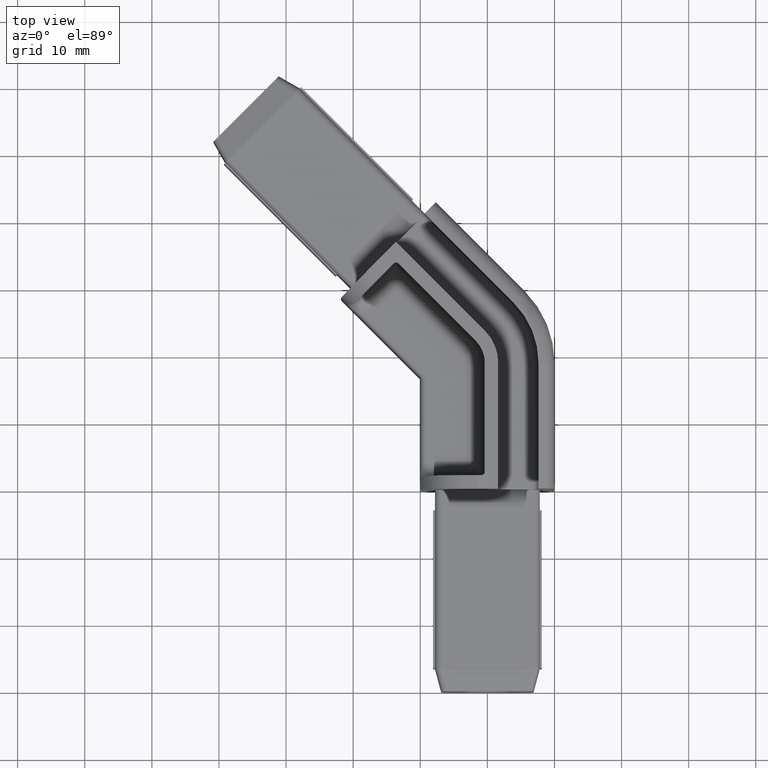
[diagram: clean part render]
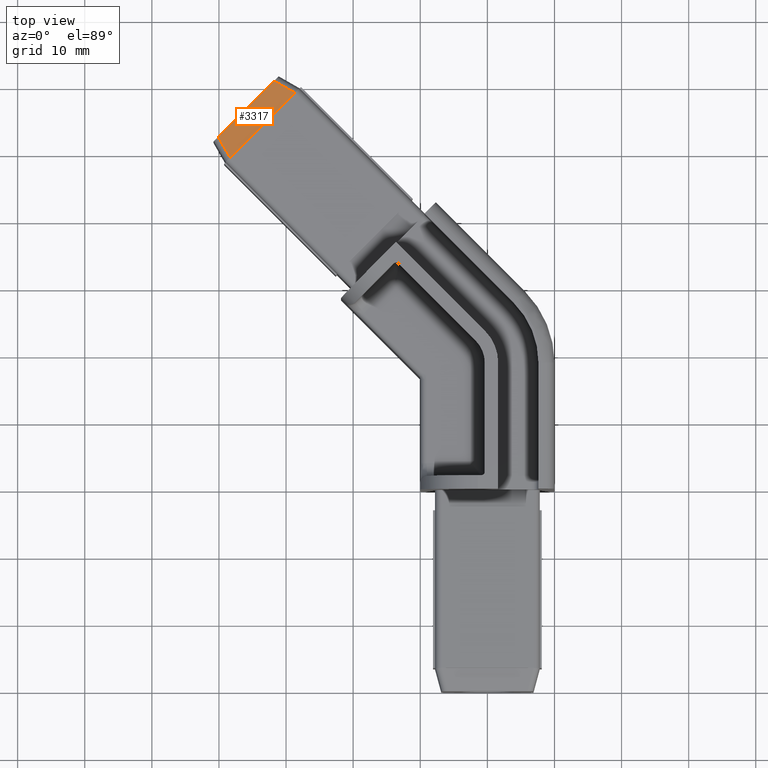
[diagram: same view with one face highlighted and labeled with its STEP entity id]
A machine part, top view. The second image highlights one B-rep face of the part: STEP entity #3317.
In plain terms, the highlighted face is a freeform B-spline surface patch.
Its self-contained STEP definition (entity closure, byte-faithful):
#927=CARTESIAN_POINT('',(-29.183738963412907,88.652577317620640,7.800000000000249));
#928=VERTEX_POINT('',#927);
#937=CARTESIAN_POINT('',(-37.810441737096198,80.025874630353556,7.800000000000249));
#938=VERTEX_POINT('',#937);
#939=CARTESIAN_POINT('',(-29.183739076026058,88.652577430233791,7.800000000000249));
#940=DIRECTION('',(-0.707106781186530,-0.707106781186565,-7.280151E-017));
#941=VECTOR('',#940,12.199999999999021);
#942=LINE('',#939,#941);
#943=EDGE_CURVE('',#928,#938,#942,.T.);
#2683=CARTESIAN_POINT('',(-40.125281275743646,82.618492087083112,6.879999983310947));
#2684=VERTEX_POINT('',#2683);
#2692=CARTESIAN_POINT('',(-31.776356463351021,90.967416899476135,6.879999983310949));
#2693=VERTEX_POINT('',#2692);
#2694=CARTESIAN_POINT('',(-31.776356463351007,90.967416899476135,6.879999983310949));
#2695=DIRECTION('',(-0.707106781186526,-0.707106781186569,-7.522370E-017));
#2696=VECTOR('',#2695,11.807162700919180);
#2697=LINE('',#2694,#2696);
#2698=EDGE_CURVE('',#2693,#2684,#2697,.T.);
#3011=CARTESIAN_POINT('',(-38.330080857971097,79.509113753731910,7.799460442112372));
#3012=VERTEX_POINT('',#3011);
#3023=CARTESIAN_POINT('',(-38.330080857971225,79.509113753731796,7.799460442112413));
#3024=CARTESIAN_POINT('',(-38.504195454758332,79.810689081706656,7.710282941115267));
#3025=CARTESIAN_POINT('',(-39.102595594015426,80.847148526157085,7.403796121514778));
#3026=CARTESIAN_POINT('',(-39.700995733273430,81.883607970607542,7.097309301914275));
#3027=CARTESIAN_POINT('',(-40.125281275743646,82.618492087083112,6.879999983310947));
#3028=B_SPLINE_CURVE_WITH_KNOTS('',3,(#3023,#3024,#3025,#3026,#3027),.UNSPECIFIED.,.F.,.U.,(4,1,4),(0.002174909683774,1.080574548720466,3.708437946110557),.UNSPECIFIED.);
#3029=EDGE_CURVE('',#3012,#2684,#3028,.T.);
#3049=CARTESIAN_POINT('',(-38.305416553332179,79.530899952927072,7.800000000000249));
#3050=VERTEX_POINT('',#3049);
#3057=CARTESIAN_POINT('',(-38.330080857970870,79.509113753731938,7.799460442112429));
#3058=CARTESIAN_POINT('',(-38.325746184946183,79.512492331955357,7.799639681025535));
#3059=CARTESIAN_POINT('',(-38.317294429781214,79.519503889535869,7.799909674596672));
#3060=CARTESIAN_POINT('',(-38.309289938555821,79.527026567703572,7.800000000000291));
#3061=CARTESIAN_POINT('',(-38.305416553332179,79.530899952927101,7.800000000000291));
#3062=B_SPLINE_CURVE_WITH_KNOTS('',3,(#3057,#3058,#3059,#3060,#3061),.UNSPECIFIED.,.F.,.U.,(4,1,4),(0.0,0.016496265294651,0.032929647040892),.UNSPECIFIED.);
#3063=EDGE_CURVE('',#3012,#3050,#3062,.T.);
#3081=CARTESIAN_POINT('',(-28.666978130001098,89.172216481704410,7.799460442112032));
#3082=VERTEX_POINT('',#3081);
#3083=CARTESIAN_POINT('',(-28.666978130001084,89.172216481704410,7.799460442112041));
#3084=CARTESIAN_POINT('',(-28.968553457975442,89.346331078491360,7.710282941115004));
#3085=CARTESIAN_POINT('',(-30.005012902425346,89.944731217748583,7.403796121514654));
#3086=CARTESIAN_POINT('',(-31.041472346875480,90.543131357005862,7.097309301914276));
#3087=CARTESIAN_POINT('',(-31.776356463351021,90.967416899476135,6.879999983310949));
#3088=B_SPLINE_CURVE_WITH_KNOTS('',3,(#3083,#3084,#3085,#3086,#3087),.UNSPECIFIED.,.F.,.U.,(4,1,4),(0.002174909685279,1.080574548720504,3.708437946110585),.UNSPECIFIED.);
#3089=EDGE_CURVE('',#3082,#2693,#3088,.T.);
#3135=CARTESIAN_POINT('',(-28.688764329194782,89.147552177065037,7.800000000000249));
#3136=VERTEX_POINT('',#3135);
#3137=CARTESIAN_POINT('',(-28.666978130001098,89.172216481704410,7.799460442112018));
#3138=CARTESIAN_POINT('',(-28.670356708224517,89.167881808679894,7.799639681025109));
#3139=CARTESIAN_POINT('',(-28.677368265805171,89.159430053515209,7.799909674596218));
#3140=CARTESIAN_POINT('',(-28.684890943971368,89.151425562288566,7.800000000000235));
#3141=CARTESIAN_POINT('',(-28.688764329194782,89.147552177065037,7.800000000000235));
#3142=B_SPLINE_CURVE_WITH_KNOTS('',3,(#3137,#3138,#3139,#3140,#3141),.UNSPECIFIED.,.F.,.U.,(4,1,4),(0.0,0.016496265294191,0.032929647040395),.UNSPECIFIED.);
#3143=EDGE_CURVE('',#3082,#3136,#3142,.T.);
#3271=CARTESIAN_POINT('',(-37.810441806501032,80.025874699758390,7.800000000000249));
#3272=DIRECTION('',(-0.707106781186537,-0.707106781186558,0.0));
#3273=VECTOR('',#3272,0.700000000000908);
#3274=LINE('',#3271,#3273);
#3275=EDGE_CURVE('',#938,#3050,#3274,.T.);
#3280=CARTESIAN_POINT('',(-28.688764329194807,89.147552177065066,7.800000000000249));
#3281=DIRECTION('',(-0.707106781186530,-0.707106781186565,0.0));
#3282=VECTOR('',#3281,0.700000000000961);
#3283=LINE('',#3280,#3282);
#3284=EDGE_CURVE('',#3136,#928,#3283,.T.);
#3290=CARTESIAN_POINT('',(-28.664829622629934,89.171482187995821,7.800000880289896));
#3291=CARTESIAN_POINT('',(-29.482739881330200,89.989392446696030,7.493333914630247));
#3292=CARTESIAN_POINT('',(-30.300650140030463,90.807302705396239,7.186666948970598));
#3293=CARTESIAN_POINT('',(-31.118560398730729,91.625212964096448,6.879999983310949));
#3294=CARTESIAN_POINT('',(-31.886335269841158,85.949976540784434,7.800000880289896));
#3295=CARTESIAN_POINT('',(-32.704245528541421,86.767886799484643,7.493333914630247));
#3296=CARTESIAN_POINT('',(-33.522155787241687,87.585797058184838,7.186666948970598));
#3297=CARTESIAN_POINT('',(-34.340066045941953,88.403707316885047,6.879999983310949));
#3298=CARTESIAN_POINT('',(-35.107840917052378,82.728470893573061,7.800000880289895));
#3299=CARTESIAN_POINT('',(-35.925751175752644,83.546381152273256,7.493333914630246));
#3300=CARTESIAN_POINT('',(-36.743661434452910,84.364291410973451,7.186666948970597));
#3301=CARTESIAN_POINT('',(-37.561571693153176,85.182201669673645,6.879999983310948));
#3302=CARTESIAN_POINT('',(-38.329346564263602,79.506965246361673,7.800000880289895));
#3303=CARTESIAN_POINT('',(-39.147256822963868,80.324875505061868,7.493333914630246));
#3304=CARTESIAN_POINT('',(-39.965167081664134,81.142785763762049,7.186666948970597));
#3305=CARTESIAN_POINT('',(-40.783077340364400,81.960696022462244,6.879999983310948));
#3306=B_SPLINE_SURFACE_WITH_KNOTS('',3,3,((#3290,#3294,#3298,#3302),(#3291,#3295,#3299,#3303),(#3292,#3296,#3300,#3304),(#3293,#3297,#3301,#3305)),.UNSPECIFIED.,.F.,.F.,.U.,(4,4),(4,4),(0.0,3.589984831947000),(0.0,13.667690932643239),.UNSPECIFIED.);
#3307=ORIENTED_EDGE('',*,*,#3089,.T.);
#3308=ORIENTED_EDGE('',*,*,#2698,.T.);
#3309=ORIENTED_EDGE('',*,*,#3029,.F.);
#3310=ORIENTED_EDGE('',*,*,#3063,.T.);
#3311=ORIENTED_EDGE('',*,*,#3275,.F.);
#3312=ORIENTED_EDGE('',*,*,#943,.F.);
#3313=ORIENTED_EDGE('',*,*,#3284,.F.);
#3314=ORIENTED_EDGE('',*,*,#3143,.F.);
#3315=EDGE_LOOP('',(#3307,#3308,#3309,#3310,#3311,#3312,#3313,#3314));
#3316=FACE_OUTER_BOUND('',#3315,.T.);
#3317=ADVANCED_FACE('',(#3316),#3306,.T.);